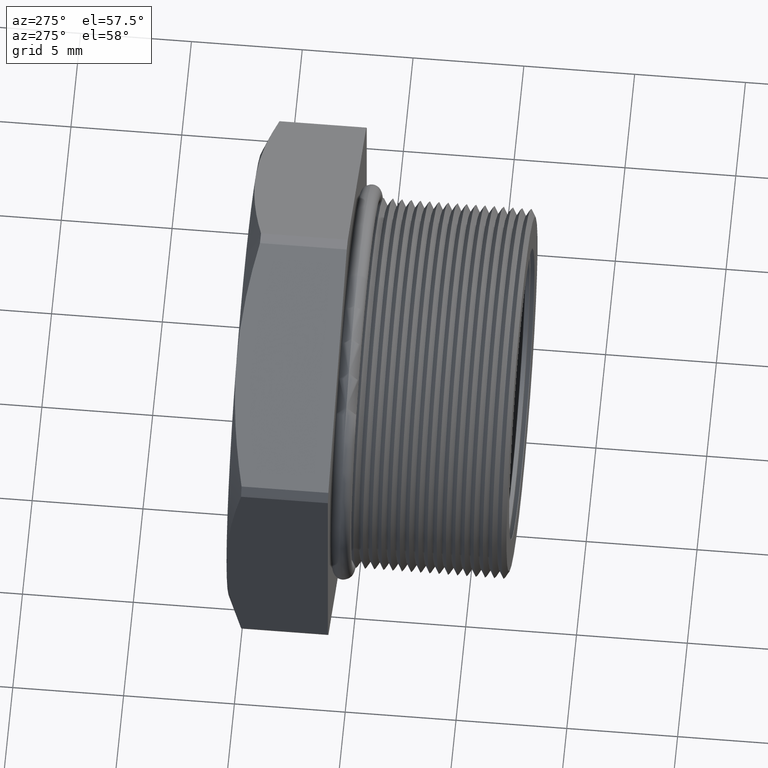
[diagram: clean part render]
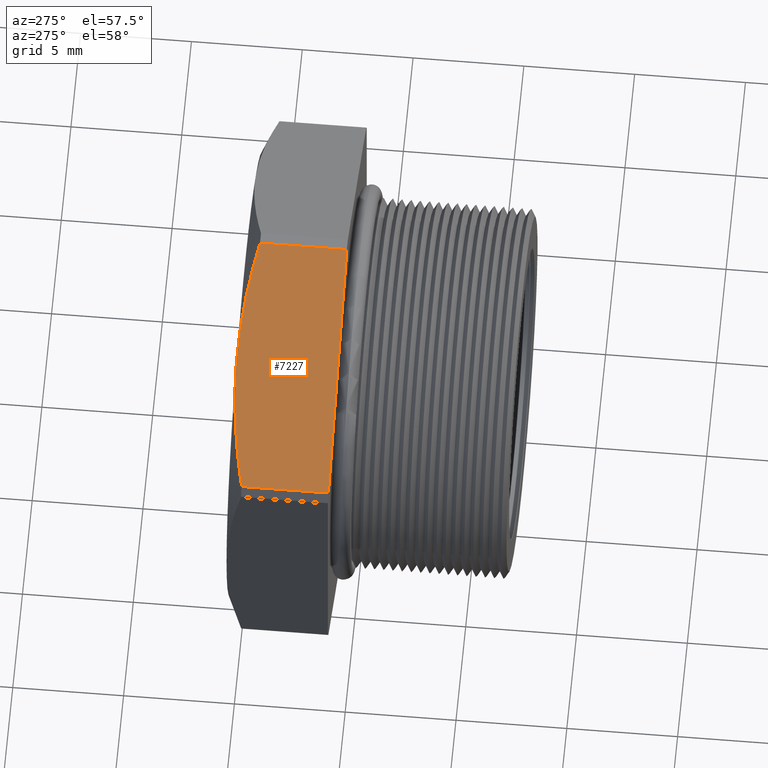
[diagram: same view with one face highlighted and labeled with its STEP entity id]
A machine part, auxiliary view. The second image highlights one B-rep face of the part: STEP entity #7227.
In plain terms, the highlighted planar face has unit normal (-0.5, 0, 0.866).
Its self-contained STEP definition (entity closure, byte-faithful):
#2064 = CARTESIAN_POINT ( 'NONE',  ( -0.01026000026703719400, 0.2275548905829479800, 0.4501830987437449000 ) ) ;
#3831 = CARTESIAN_POINT ( 'NONE',  ( -0.1975000000000000100, 0.4075548905829479200, 0.3420800344948533600 ) ) ;
#3949 = AXIS2_PLACEMENT_3D ( 'NONE', #4007, #4006, #4005 ) ;
#3950 = PLANE ( 'NONE',  #3949 ) ;
#3952 = FACE_OUTER_BOUND ( 'NONE', #7228, .T. ) ;
#3980 = DIRECTION ( 'NONE',  ( -0.0000000000000000000, -1.000000000000000000, -0.0000000000000000000 ) ) ;
#3981 = VECTOR ( 'NONE', #3980, 39.37007874015748100 ) ;
#3982 = CARTESIAN_POINT ( 'NONE',  ( -0.01026000026703719400, 0.0000000000000000000, 0.4501830987437449000 ) ) ;
#3983 = LINE ( 'NONE', #3982, #3981 ) ;
#3984 = CARTESIAN_POINT ( 'NONE',  ( -0.01026000026703719400, 0.3817680770869766300, 0.4501830987437449000 ) ) ;
#4005 = DIRECTION ( 'NONE',  ( 0.8660254037844386000, 0.0000000000000000000, 0.4999999999999998300 ) ) ;
#4006 = DIRECTION ( 'NONE',  ( -0.4999999999999998900, 0.0000000000000000000, 0.8660254037844387100 ) ) ;
#4007 = CARTESIAN_POINT ( 'NONE',  ( 4.505440556987010000E-017, 0.4075548905829479700, 0.4561067126598044600 ) ) ;
#4023 = CARTESIAN_POINT ( 'NONE',  ( -0.3847399997329628600, 0.3817680770869766300, 0.2339769702459618400 ) ) ;
#4024 = CARTESIAN_POINT ( 'NONE',  ( -0.3847399997329628000, 0.2275548905829479800, 0.2339769702459618100 ) ) ;
#4025 = DIRECTION ( 'NONE',  ( 0.0000000000000000000, 1.000000000000000000, 0.0000000000000000000 ) ) ;
#4026 = VECTOR ( 'NONE', #4025, 39.37007874015748100 ) ;
#4027 = CARTESIAN_POINT ( 'NONE',  ( -0.3847399997329628000, 0.0000000000000000000, 0.2339769702459618100 ) ) ;
#4028 = LINE ( 'NONE', #4027, #4026 ) ;
#4092 = CARTESIAN_POINT ( 'NONE',  ( -0.1975000000000000100, 0.4075548905829479200, 0.3420800344948533600 ) ) ;
#4093 = CARTESIAN_POINT ( 'NONE',  ( -0.1660817377447930700, 0.4075548905829479200, 0.3602193766653673000 ) ) ;
#4094 = CARTESIAN_POINT ( 'NONE',  ( -0.1347800776656142300, 0.4051865378565922500, 0.3782913985381633500 ) ) ;
#4095 = CARTESIAN_POINT ( 'NONE',  ( -0.07238150130182610700, 0.3962912005447678500, 0.4143172333988460700 ) ) ;
#4096 = CARTESIAN_POINT ( 'NONE',  ( -0.04128338948296790500, 0.3897884989263424300, 0.4322717366287527300 ) ) ;
#4097 = CARTESIAN_POINT ( 'NONE',  ( -0.01026000026703719400, 0.3817680770869766300, 0.4501830987437449000 ) ) ;
#4098 = B_SPLINE_CURVE_WITH_KNOTS ( 'NONE', 3,
 ( #4097, #4096, #4095, #4094, #4093, #4092 ),
 .UNSPECIFIED., .F., .F.,
 ( 4, 2, 4 ),
 ( 2.335025902589980200E-007, 0.002760212844509911800, 0.005520192186429564600 ),
 .UNSPECIFIED. ) ;
#4135 = DIRECTION ( 'NONE',  ( -0.8660254037844386000, 0.0000000000000000000, -0.4999999999999998300 ) ) ;
#4136 = VECTOR ( 'NONE', #4135, 39.37007874015748900 ) ;
#4137 = CARTESIAN_POINT ( 'NONE',  ( 0.03875000000000002700, 0.2275548905829479800, 0.4784790355909024400 ) ) ;
#4138 = CARTESIAN_POINT ( 'NONE',  ( -0.3847399997329628600, 0.3817680770869766300, 0.2339769702459618400 ) ) ;
#4139 = CARTESIAN_POINT ( 'NONE',  ( -0.3538644116588921000, 0.3897502881590466700, 0.2518029993319146300 ) ) ;
#4140 = CARTESIAN_POINT ( 'NONE',  ( -0.3227431943461728800, 0.3962764420413620300, 0.2697708425249218400 ) ) ;
#4141 = CARTESIAN_POINT ( 'NONE',  ( -0.2599588776186196900, 0.4052207272773963300, 0.3060193846884615200 ) ) ;
#4142 = CARTESIAN_POINT ( 'NONE',  ( -0.2286719793528691200, 0.4075548905829478600, 0.3240828838243009500 ) ) ;
#4143 = CARTESIAN_POINT ( 'NONE',  ( -0.1975000000000000100, 0.4075548905829479200, 0.3420800344948533600 ) ) ;
#4144 = LINE ( 'NONE', #4137, #4136 ) ;
#4145 = B_SPLINE_CURVE_WITH_KNOTS ( 'NONE', 3,
 ( #4143, #4142, #4141, #4140, #4139, #4138 ),
 .UNSPECIFIED., .F., .F.,
 ( 4, 2, 4 ),
 ( 0.005520192186429564600, 0.008258536476824108300, 0.01099688076721865000 ),
 .UNSPECIFIED. ) ;
#6214 = VERTEX_POINT ( 'NONE', #2064 ) ;
#7162 = VERTEX_POINT ( 'NONE', #3831 ) ;
#7227 = ADVANCED_FACE ( 'NONE', ( #3952 ), #3950, .T. ) ;
#7228 = EDGE_LOOP ( 'NONE', ( #7284, #7285, #7287, #7289, #7290 ) ) ;
#7239 = VERTEX_POINT ( 'NONE', #3984 ) ;
#7241 = EDGE_CURVE ( 'NONE', #7239, #6214, #3983, .T. ) ;
#7250 = EDGE_CURVE ( 'NONE', #7251, #7252, #4028, .T. ) ;
#7251 = VERTEX_POINT ( 'NONE', #4024 ) ;
#7252 = VERTEX_POINT ( 'NONE', #4023 ) ;
#7284 = ORIENTED_EDGE ( 'NONE', *, *, #7241, .F. ) ;
#7285 = ORIENTED_EDGE ( 'NONE', *, *, #7286, .T. ) ;
#7286 = EDGE_CURVE ( 'NONE', #7239, #7162, #4098, .T. ) ;
#7287 = ORIENTED_EDGE ( 'NONE', *, *, #7288, .T. ) ;
#7288 = EDGE_CURVE ( 'NONE', #7162, #7252, #4145, .T. ) ;
#7289 = ORIENTED_EDGE ( 'NONE', *, *, #7250, .F. ) ;
#7290 = ORIENTED_EDGE ( 'NONE', *, *, #7291, .F. ) ;
#7291 = EDGE_CURVE ( 'NONE', #6214, #7251, #4144, .T. ) ;